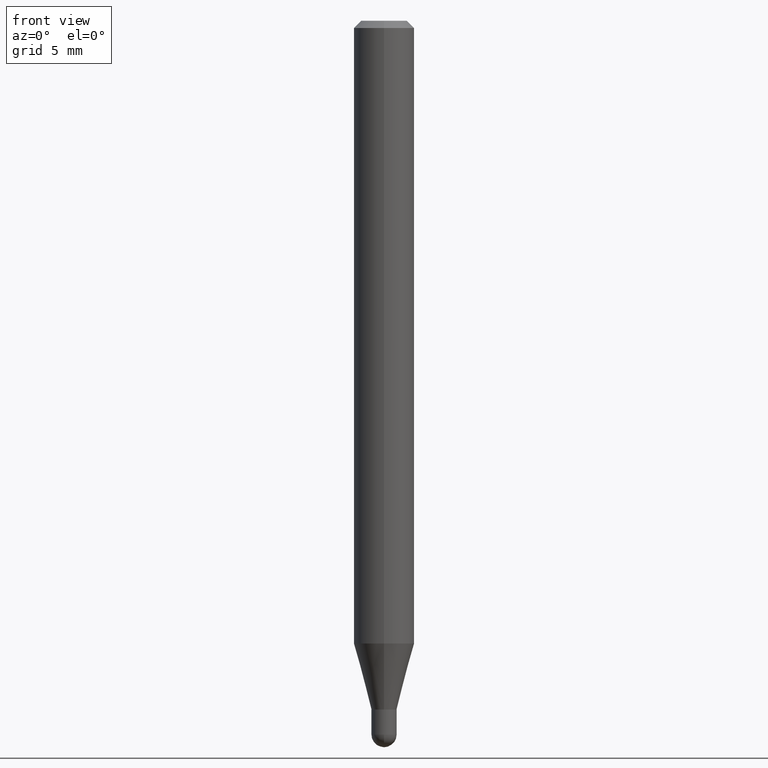
[diagram: clean part render]
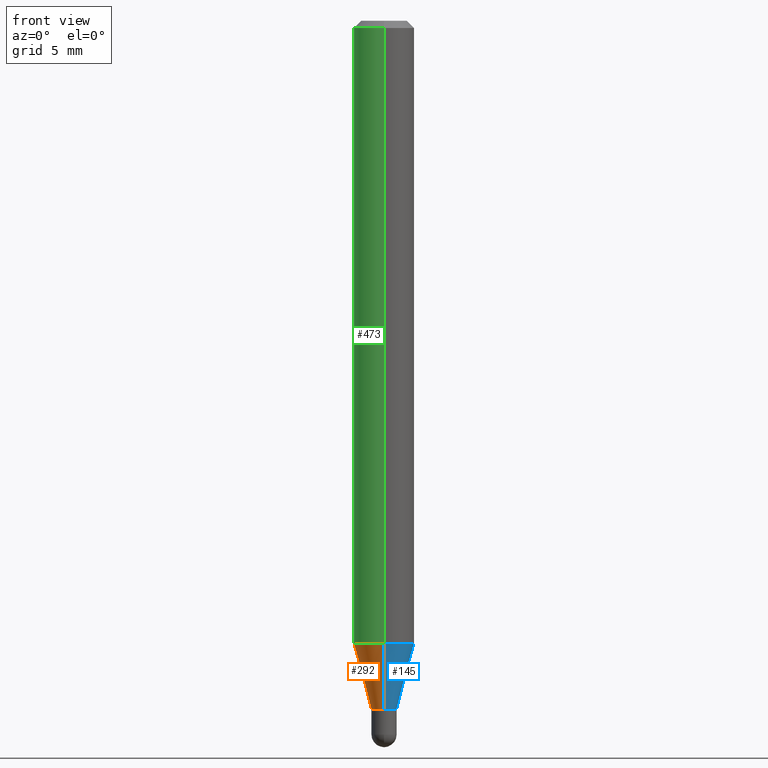
[diagram: same view with three faces highlighted in distinct colors, each labeled with its STEP entity id]
A machine part, front view with three faces highlighted in distinct colors.
Their STEP definitions:

[orange] entity #292 — the highlighted conical surface has half-angle 15 deg.
#3 = CARTESIAN_POINT ( 'NONE',  ( -4.364351673553603615E-16, -0.06250000000000451028, -1.285780145523740092 ) ) ;
#9 = VERTEX_POINT ( 'NONE', #3 ) ;
#16 = CARTESIAN_POINT ( 'NONE',  ( -1.815570296198075284E-16, -0.02600000000000488032, -1.422000000000000375 ) ) ;
#26 = DIRECTION ( 'NONE',  ( -6.982962677686265133E-15, -1.000000000000000000, 0.000000000000000000 ) ) ;
#30 = ORIENTED_EDGE ( 'NONE', *, *, #216, .T. ) ;
#49 = AXIS2_PLACEMENT_3D ( 'NONE', #468, #189, #231 ) ;
#85 = EDGE_LOOP ( 'NONE', ( #197, #30, #447, #413 ) ) ;
#86 = DIRECTION ( 'NONE',  ( 1.839019923739648830E-15, 0.2588190451025317862, 0.9659258262890653146 ) ) ;
#100 = CONICAL_SURFACE ( 'NONE', #455, 0.02599999999999991554, 0.2617993877991573459 ) ;
#148 = DIRECTION ( 'NONE',  ( -2.445454582706434094E-29, 3.491501707674197965E-15, 1.000000000000000000 ) ) ;
#161 = LINE ( 'NONE', #279, #167 ) ;
#162 = VERTEX_POINT ( 'NONE', #16 ) ;
#167 = VECTOR ( 'NONE', #482, 39.37007874015748854 ) ;
#189 = DIRECTION ( 'NONE',  ( -2.445454582706434094E-29, 3.491501707674197965E-15, 1.000000000000000000 ) ) ;
#197 = ORIENTED_EDGE ( 'NONE', *, *, #424, .F. ) ;
#198 = CARTESIAN_POINT ( 'NONE',  ( 4.440892098500937762E-16, 0.06249999999999548972, -1.285780145523740536 ) ) ;
#211 = EDGE_CURVE ( 'NONE', #415, #9, #399, .T. ) ;
#216 = EDGE_CURVE ( 'NONE', #441, #162, #308, .T. ) ;
#231 = DIRECTION ( 'NONE',  ( -6.982962677686265922E-15, -1.000000000000000000, 4.370956789862821150E-15 ) ) ;
#279 = CARTESIAN_POINT ( 'NONE',  ( -1.815570296198075284E-16, -0.02600000000000488032, -1.422000000000000375 ) ) ;
#284 = LINE ( 'NONE', #369, #435 ) ;
#292 = ADVANCED_FACE ( 'NONE', ( #350 ), #100, .T. ) ;
#308 = CIRCLE ( 'NONE', #352, 0.02599999999999991554 ) ;
#350 = FACE_OUTER_BOUND ( 'NONE', #85, .T. ) ;
#352 = AXIS2_PLACEMENT_3D ( 'NONE', #390, #148, #357 ) ;
#357 = DIRECTION ( 'NONE',  ( -6.982962677686265133E-15, -1.000000000000000000, 0.000000000000000000 ) ) ;
#369 = CARTESIAN_POINT ( 'NONE',  ( 1.847411112976602074E-16, 0.02599999999999495076, -1.422000000000000375 ) ) ;
#388 = EDGE_CURVE ( 'NONE', #162, #9, #161, .T. ) ;
#390 = CARTESIAN_POINT ( 'NONE',  ( 3.477436416608549682E-29, -4.964915428312711187E-15, -1.422000000000000375 ) ) ;
#392 = DIRECTION ( 'NONE',  ( -2.445454582706434094E-29, 3.491501707674197965E-15, 1.000000000000000000 ) ) ;
#399 = CIRCLE ( 'NONE', #49, 0.06250000000000000000 ) ;
#400 = CARTESIAN_POINT ( 'NONE',  ( 3.477436416608549682E-29, -4.964915428312711187E-15, -1.422000000000000375 ) ) ;
#413 = ORIENTED_EDGE ( 'NONE', *, *, #211, .F. ) ;
#415 = VERTEX_POINT ( 'NONE', #198 ) ;
#424 = EDGE_CURVE ( 'NONE', #441, #415, #284, .T. ) ;
#435 = VECTOR ( 'NONE', #86, 39.37007874015748143 ) ;
#441 = VERTEX_POINT ( 'NONE', #476 ) ;
#447 = ORIENTED_EDGE ( 'NONE', *, *, #388, .T. ) ;
#455 = AXIS2_PLACEMENT_3D ( 'NONE', #400, #392, #26 ) ;
#468 = CARTESIAN_POINT ( 'NONE',  ( 3.144316949223975890E-29, -4.489303573789717713E-15, -1.285780145523740314 ) ) ;
#476 = CARTESIAN_POINT ( 'NONE',  ( 3.144151605738772013E-16, 0.02599999999999495076, -1.422000000000000375 ) ) ;
#482 = DIRECTION ( 'NONE',  ( -1.807323732225377865E-15, -0.2588190451025250138, 0.9659258262890670910 ) ) ;

[blue] entity #145 — the highlighted conical surface has half-angle 15 deg.
#3 = CARTESIAN_POINT ( 'NONE',  ( -4.364351673553603615E-16, -0.06250000000000451028, -1.285780145523740092 ) ) ;
#9 = VERTEX_POINT ( 'NONE', #3 ) ;
#16 = CARTESIAN_POINT ( 'NONE',  ( -1.815570296198075284E-16, -0.02600000000000488032, -1.422000000000000375 ) ) ;
#59 = DIRECTION ( 'NONE',  ( -6.982962677686265133E-15, -1.000000000000000000, 0.000000000000000000 ) ) ;
#86 = DIRECTION ( 'NONE',  ( 1.839019923739648830E-15, 0.2588190451025317862, 0.9659258262890653146 ) ) ;
#89 = EDGE_CURVE ( 'NONE', #162, #441, #433, .T. ) ;
#101 = DIRECTION ( 'NONE',  ( -6.982962677686265133E-15, -1.000000000000000000, 0.000000000000000000 ) ) ;
#138 = DIRECTION ( 'NONE',  ( -2.445454582706434094E-29, 3.491501707674197965E-15, 1.000000000000000000 ) ) ;
#139 = EDGE_CURVE ( 'NONE', #9, #415, #176, .T. ) ;
#145 = ADVANCED_FACE ( 'NONE', ( #488 ), #463, .T. ) ;
#147 = ORIENTED_EDGE ( 'NONE', *, *, #89, .T. ) ;
#161 = LINE ( 'NONE', #279, #167 ) ;
#162 = VERTEX_POINT ( 'NONE', #16 ) ;
#167 = VECTOR ( 'NONE', #482, 39.37007874015748854 ) ;
#170 = ORIENTED_EDGE ( 'NONE', *, *, #424, .T. ) ;
#176 = CIRCLE ( 'NONE', #469, 0.06250000000000000000 ) ;
#198 = CARTESIAN_POINT ( 'NONE',  ( 4.440892098500937762E-16, 0.06249999999999548972, -1.285780145523740536 ) ) ;
#215 = DIRECTION ( 'NONE',  ( -2.445454582706434094E-29, 3.491501707674197965E-15, 1.000000000000000000 ) ) ;
#218 = CARTESIAN_POINT ( 'NONE',  ( 3.477436416608549682E-29, -4.964915428312711187E-15, -1.422000000000000375 ) ) ;
#237 = EDGE_LOOP ( 'NONE', ( #147, #170, #356, #486 ) ) ;
#279 = CARTESIAN_POINT ( 'NONE',  ( -1.815570296198075284E-16, -0.02600000000000488032, -1.422000000000000375 ) ) ;
#284 = LINE ( 'NONE', #369, #435 ) ;
#332 = AXIS2_PLACEMENT_3D ( 'NONE', #348, #138, #101 ) ;
#337 = DIRECTION ( 'NONE',  ( -6.982962677686265922E-15, -1.000000000000000000, 4.370956789862821150E-15 ) ) ;
#348 = CARTESIAN_POINT ( 'NONE',  ( 3.477436416608549682E-29, -4.964915428312711187E-15, -1.422000000000000375 ) ) ;
#356 = ORIENTED_EDGE ( 'NONE', *, *, #139, .F. ) ;
#369 = CARTESIAN_POINT ( 'NONE',  ( 1.847411112976602074E-16, 0.02599999999999495076, -1.422000000000000375 ) ) ;
#388 = EDGE_CURVE ( 'NONE', #162, #9, #161, .T. ) ;
#415 = VERTEX_POINT ( 'NONE', #198 ) ;
#424 = EDGE_CURVE ( 'NONE', #441, #415, #284, .T. ) ;
#429 = CARTESIAN_POINT ( 'NONE',  ( 3.144316949223975890E-29, -4.489303573789717713E-15, -1.285780145523740314 ) ) ;
#433 = CIRCLE ( 'NONE', #332, 0.02599999999999991554 ) ;
#435 = VECTOR ( 'NONE', #86, 39.37007874015748143 ) ;
#441 = VERTEX_POINT ( 'NONE', #476 ) ;
#456 = DIRECTION ( 'NONE',  ( -2.445454582706434094E-29, 3.491501707674197965E-15, 1.000000000000000000 ) ) ;
#463 = CONICAL_SURFACE ( 'NONE', #496, 0.02599999999999991554, 0.2617993877991573459 ) ;
#469 = AXIS2_PLACEMENT_3D ( 'NONE', #429, #215, #337 ) ;
#476 = CARTESIAN_POINT ( 'NONE',  ( 3.144151605738772013E-16, 0.02599999999999495076, -1.422000000000000375 ) ) ;
#482 = DIRECTION ( 'NONE',  ( -1.807323732225377865E-15, -0.2588190451025250138, 0.9659258262890670910 ) ) ;
#486 = ORIENTED_EDGE ( 'NONE', *, *, #388, .F. ) ;
#488 = FACE_OUTER_BOUND ( 'NONE', #237, .T. ) ;
#496 = AXIS2_PLACEMENT_3D ( 'NONE', #218, #456, #59 ) ;

[green] entity #473 — the highlighted cylindrical surface (edge-blend (fillet) strip) has radius 1.5875 mm, axis along (-0, 0, 1).
#3 = CARTESIAN_POINT ( 'NONE',  ( -4.364351673553603615E-16, -0.06250000000000451028, -1.285780145523740092 ) ) ;
#9 = VERTEX_POINT ( 'NONE', #3 ) ;
#27 = ORIENTED_EDGE ( 'NONE', *, *, #266, .T. ) ;
#29 = DIRECTION ( 'NONE',  ( -2.445454582706433813E-29, 3.491501707674197965E-15, 1.000000000000000000 ) ) ;
#31 = VECTOR ( 'NONE', #29, 39.37007874015748143 ) ;
#49 = AXIS2_PLACEMENT_3D ( 'NONE', #468, #189, #231 ) ;
#69 = ORIENTED_EDGE ( 'NONE', *, *, #211, .T. ) ;
#76 = DIRECTION ( 'NONE',  ( -6.982962677686265922E-15, -1.000000000000000000, 3.491501707674197571E-15 ) ) ;
#115 = CARTESIAN_POINT ( 'NONE',  ( 0.000000000000000000, 0.000000000000000000, 0.000000000000000000 ) ) ;
#119 = CYLINDRICAL_SURFACE ( 'NONE', #141, 0.06250000000000000000 ) ;
#125 = VERTEX_POINT ( 'NONE', #494 ) ;
#141 = AXIS2_PLACEMENT_3D ( 'NONE', #115, #281, #76 ) ;
#146 = CARTESIAN_POINT ( 'NONE',  ( 4.440892098500625669E-16, 0.06250000000000000000, -2.182188567296373482E-16 ) ) ;
#185 = DIRECTION ( 'NONE',  ( -2.445454582706434094E-29, 3.491501707674197965E-15, 1.000000000000000000 ) ) ;
#189 = DIRECTION ( 'NONE',  ( -2.445454582706434094E-29, 3.491501707674197965E-15, 1.000000000000000000 ) ) ;
#193 = VERTEX_POINT ( 'NONE', #304 ) ;
#198 = CARTESIAN_POINT ( 'NONE',  ( 4.440892098500937762E-16, 0.06249999999999548972, -1.285780145523740536 ) ) ;
#211 = EDGE_CURVE ( 'NONE', #415, #9, #399, .T. ) ;
#231 = DIRECTION ( 'NONE',  ( -6.982962677686265922E-15, -1.000000000000000000, 4.370956789862821150E-15 ) ) ;
#256 = AXIS2_PLACEMENT_3D ( 'NONE', #265, #185, #502 ) ;
#265 = CARTESIAN_POINT ( 'NONE',  ( 3.668181874059653067E-31, -5.237252561511299906E-17, -0.01500000000000000812 ) ) ;
#266 = EDGE_CURVE ( 'NONE', #9, #193, #437, .T. ) ;
#270 = CIRCLE ( 'NONE', #256, 0.06250000000000000000 ) ;
#281 = DIRECTION ( 'NONE',  ( -2.445454582706434094E-29, 3.491501707674197965E-15, 1.000000000000000000 ) ) ;
#294 = ORIENTED_EDGE ( 'NONE', *, *, #330, .F. ) ;
#304 = CARTESIAN_POINT ( 'NONE',  ( -4.364351673553912750E-16, -0.06250000000000005551, -0.01499999999999979128 ) ) ;
#323 = EDGE_CURVE ( 'NONE', #125, #193, #270, .T. ) ;
#330 = EDGE_CURVE ( 'NONE', #415, #125, #354, .T. ) ;
#344 = VECTOR ( 'NONE', #500, 39.37007874015748143 ) ;
#354 = LINE ( 'NONE', #146, #344 ) ;
#396 = CARTESIAN_POINT ( 'NONE',  ( -4.364351673553916201E-16, -0.06250000000000000000, 2.182188567296373482E-16 ) ) ;
#399 = CIRCLE ( 'NONE', #49, 0.06250000000000000000 ) ;
#415 = VERTEX_POINT ( 'NONE', #198 ) ;
#437 = LINE ( 'NONE', #396, #31 ) ;
#448 = FACE_OUTER_BOUND ( 'NONE', #477, .T. ) ;
#468 = CARTESIAN_POINT ( 'NONE',  ( 3.144316949223975890E-29, -4.489303573789717713E-15, -1.285780145523740314 ) ) ;
#473 = ADVANCED_FACE ( 'NONE', ( #448 ), #119, .T. ) ;
#477 = EDGE_LOOP ( 'NONE', ( #294, #69, #27, #483 ) ) ;
#483 = ORIENTED_EDGE ( 'NONE', *, *, #323, .F. ) ;
#494 = CARTESIAN_POINT ( 'NONE',  ( 4.440892098500941706E-16, 0.06249999999999995143, -0.01500000000000022669 ) ) ;
#500 = DIRECTION ( 'NONE',  ( -2.445454582706433813E-29, 3.491501707674197965E-15, 1.000000000000000000 ) ) ;
#502 = DIRECTION ( 'NONE',  ( -6.982962677686265922E-15, -1.000000000000000000, 3.483106191921935554E-15 ) ) ;